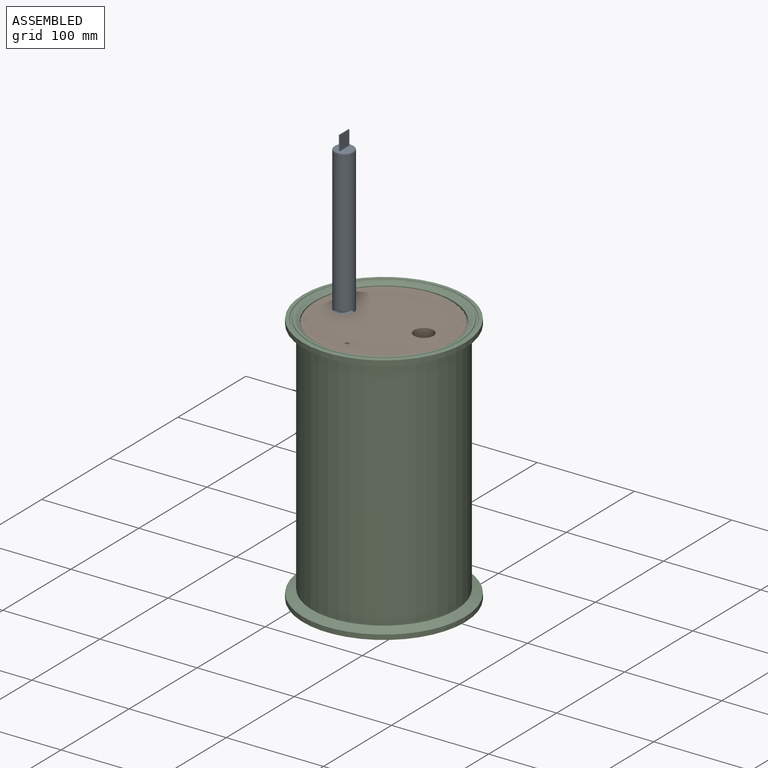
[diagram: assembled view]
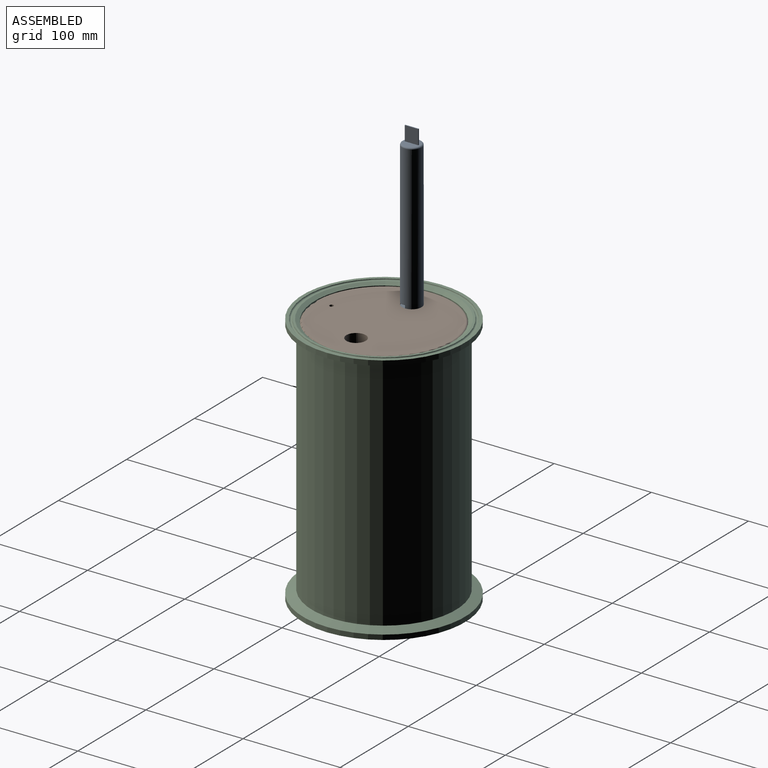
[diagram: assembled view, second angle]
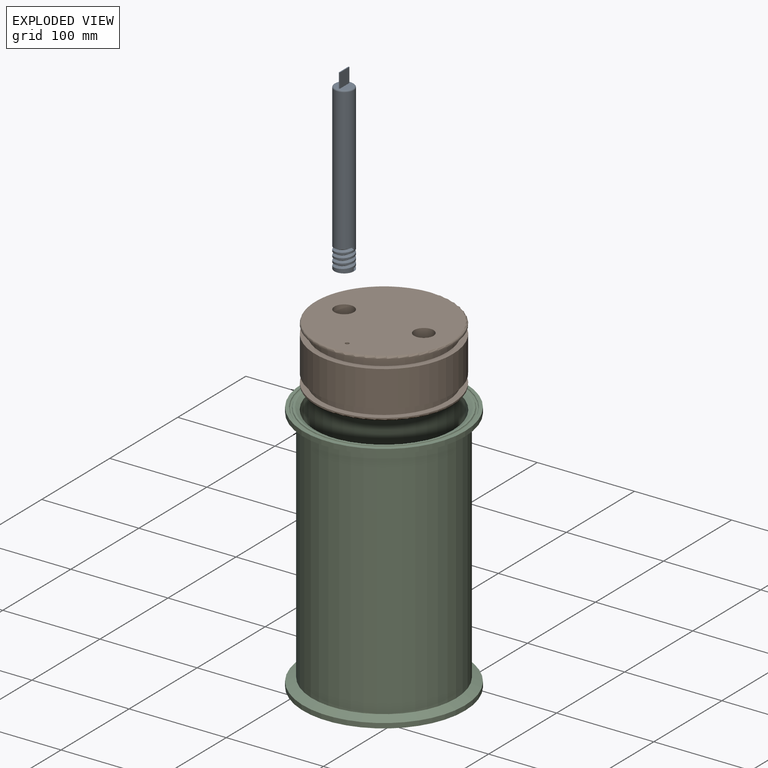
[diagram: exploded view]
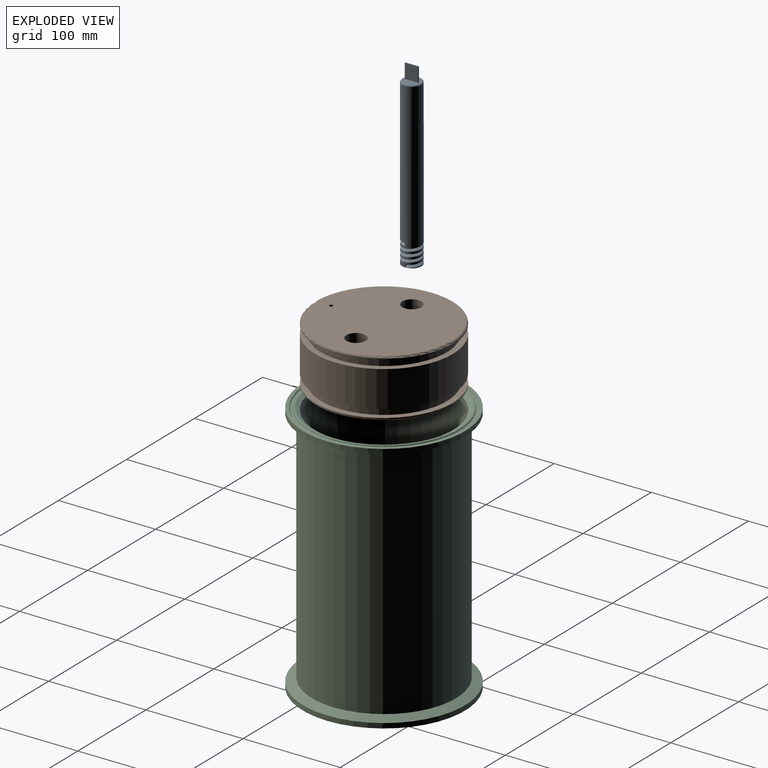
[diagram: exploded view, second angle]
ASSEMBLY  parts=3 mates=2
PART A: 17 faces, bbox 21.6x23.1x185 mm
  f0: plane 17x17mm, normal (0,0,-1), area 213mm2, adj f11,f12,f13,f15,f16
  f1: cylinder r=10mm len=150.5mm, axis (0,0,-1), area 9299.1mm2, adj f2,f8,f10,f11
  f2: cylinder r=10mm len=20mm, axis (0,0,-1), area 125.7mm2, adj f1,f3,f9,f10
  f3: cylinder r=10mm len=20mm, axis (0,0,-1), area 125.7mm2, adj f2,f4,f9,f10
  f4: cylinder r=10mm len=20mm, axis (0,0,-1), area 125.7mm2, adj f3,f5,f9,f10
  f5: cylinder r=10mm len=20mm, axis (0,0,-1), area 157.1mm2, adj f4,f6,f7,f9
  f6: plane 20x20mm, normal (0,0,1), area 314.2mm2, adj f5
  f7: plane 3x2.6mm, normal (0,-1,0), area 3.9mm2, adj f5,f9,f10
  f8: plane 3x2.6mm, normal (0,1,0), area 3.9mm2, adj f1,f9,f10
  f9: bspline ~23.09x21.5mm, area 658.6mm2, adj f2,f3,f4,f5,f7,f8,f10
  f10: bspline ~23.09x21.5mm, area 658.1mm2, adj f1,f2,f3,f4,f7,f8,f9
  f11: torus R=8.5mm, axis (0,0,1), area 140mm2, adj f0,f1
  f12: plane 15x1mm, normal (0,1,0), area 15mm2, adj f0,f14,f15,f16
  f13: plane 15x1mm, normal (0,-1,0), area 15mm2, adj f0,f14,f15,f16
  f14: plane 14x1mm, normal (0,0,-1), area 14mm2, adj f12,f13,f15,f16
  f15: plane 15x14mm, normal (1,0,0), area 210mm2, adj f0,f12,f13,f14
  f16: plane 15x14mm, normal (-1,0,0), area 210mm2, adj f0,f12,f13,f14
PART B: 18 faces, bbox 153.7x153.7x60 mm
  f0: plane 138x138mm, normal (0,0,1), area 14316.5mm2, adj f1,f13,f15,f17
  f1: torus R=69mm, axis (0,0,1), area 1365.4mm2, adj f0,f2
  f2: cylinder r=71mm len=142mm, axis (0,0,1), area 467.8mm2, adj f1,f3
  f3: plane 142x142mm, normal (0,0,-1), area 2604.3mm2, adj f2,f4
  f4: cylinder r=64.9mm len=129.8mm, axis (0,0,1), area 3466.1mm2, adj f3,f5
  f5: plane 142x142mm, normal (0,0,1), area 2604.3mm2, adj f4,f6
  f6: cylinder r=71mm len=142mm, axis (0,0,1), area 16505.9mm2, adj f5,f7
  f7: plane 142x142mm, normal (0,0,-1), area 2604.3mm2, adj f6,f8
  f8: cylinder r=64.9mm len=129.8mm, axis (0,0,1), area 3466.1mm2, adj f7,f9
  f9: plane 142x142mm, normal (0,0,1), area 2604.3mm2, adj f8,f10
  f10: cylinder r=71mm len=142mm, axis (0,0,1), area 446.1mm2, adj f9,f11
  f11: torus R=69mm, axis (0,0,1), area 1387.1mm2, adj f10,f12
  f12: plane 138x138mm, normal (0,0,-1), area 14944.6mm2, adj f11,f13
  f13: cylinder r=2mm len=60mm, axis (0,0,-1), area 754mm2, adj f0,f12
  f14: cone r=0mm half-angle=59deg, axis (0,0,1), area 366.5mm2, adj f15
  f15: cylinder r=10mm len=20mm, axis (0,0,1), area 1256.6mm2, adj f0,f14
  f16: cone r=0mm half-angle=59deg, axis (0,0,1), area 366.5mm2, adj f17
  f17: cylinder r=10mm len=20mm, axis (0,0,1), area 1256.6mm2, adj f0,f16
PART C: 13 faces, bbox 173.3x173.3x262 mm
  f0: cylinder r=71.09mm len=257.69mm, axis (0,0,-1), area 115103.1mm2, adj f11,f12
  f1: plane 154.5x154.5mm, normal (0,0,1), area 1033.8mm2, adj f2,f12
  f2: torus R=78.65mm, axis (0,0,-1), area 2173.5mm2, adj f1,f3
  f3: plane 166.9x166.9mm, normal (0,0,1), area 1746.4mm2, adj f2,f4
  f4: cylinder r=83.45mm len=166.9mm, axis (0,0,-1), area 2621.7mm2, adj f3,f5
  f5: cone r=74.09mm half-angle=67deg, axis (0,0,1), area 5033mm2, adj f4,f6
  f6: cylinder r=74.09mm len=242.05mm, axis (0,0,-1), area 112678.9mm2, adj f5,f7
  f7: cone r=74.09mm half-angle=67deg, axis (0,0,-1), area 5033mm2, adj f6,f8
  f8: cylinder r=83.45mm len=166.9mm, axis (0,0,-1), area 2621.7mm2, adj f7,f9
  f9: plane 166.9x166.9mm, normal (0,0,-1), area 1746.4mm2, adj f8,f10
  f10: torus R=78.65mm, axis (0,0,-1), area 2173.5mm2, adj f9,f11
  f11: plane 154.5x154.5mm, normal (0,0,-1), area 2870.7mm2, adj f0,f10
  f12: cone r=75.09mm half-angle=60deg, axis (0,0,1), area 2121.1mm2, adj f0,f1
PLACE A rot(axis=(1,0,0),180deg) t=(-81.41,46.76,382.9)mm
PLACE B t=(-40.41,46.76,232.9)mm
PLACE C t=(-40.41,46.81,-23.12)mm fixed
MATE fastened B.f0 <-> C.f0  axis (0,0,1) through (-40.41,46.81,232.9)mm
MATE fastened A.f1 <-> B.f16  axis (0,0,-1) through (-81.41,46.76,212.9)mm
